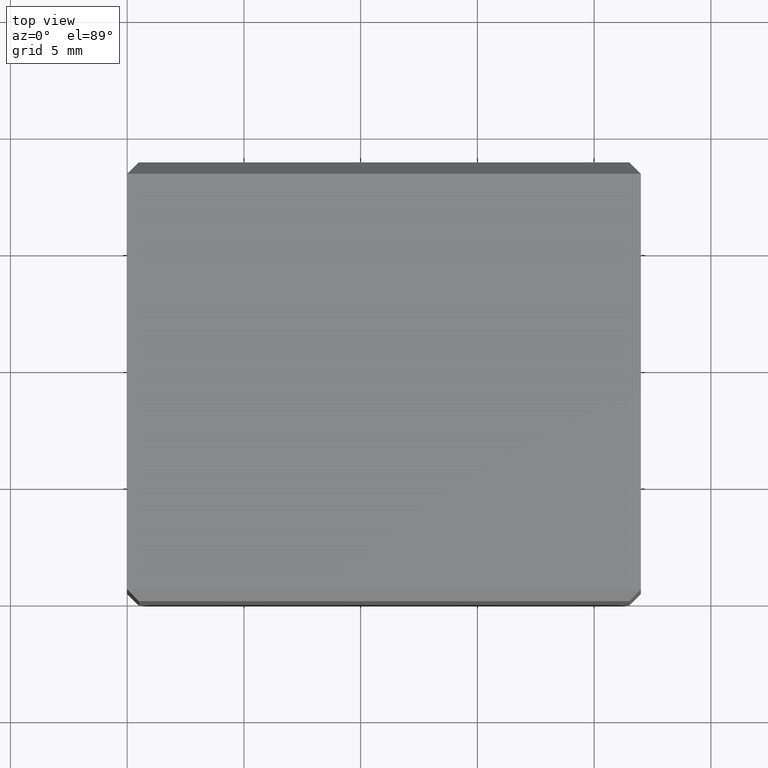
[diagram: clean part render]
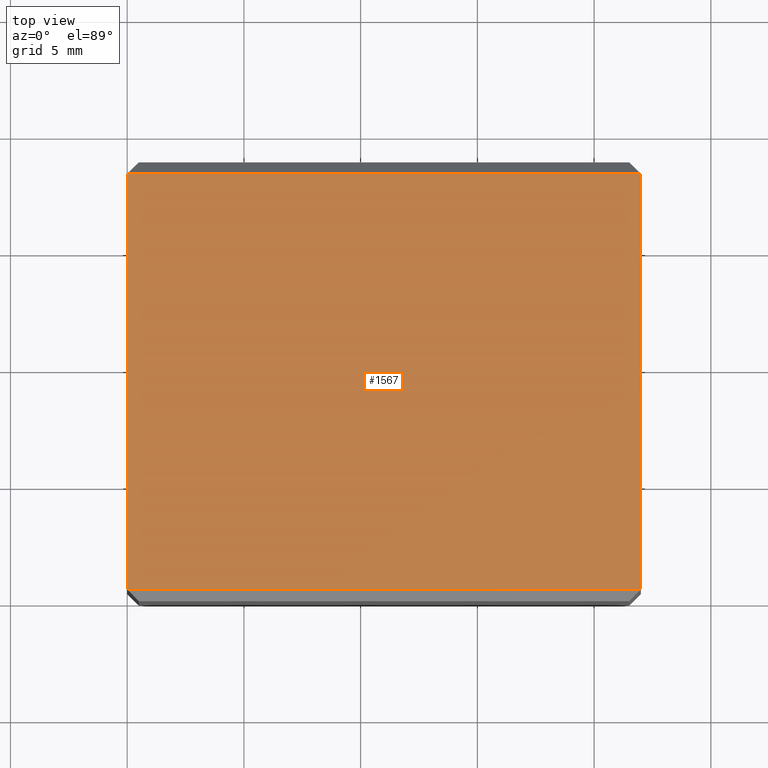
[diagram: same view with one face highlighted and labeled with its STEP entity id]
A machine part, top view. The second image highlights one B-rep face of the part: STEP entity #1567.
In plain terms, the highlighted planar face has unit normal (0, 0, -1).
Its self-contained STEP definition (entity closure, byte-faithful):
#3 = CARTESIAN_POINT ( 'NONE',  ( 22.00000000000001100, 18.29999999999999700, 8.330912090296683400E-015 ) ) ;
#9 = CARTESIAN_POINT ( 'NONE',  ( 22.00000000000000700, 0.5000000000000028900, -2.439454888092444600E-016 ) ) ;
#52 = CARTESIAN_POINT ( 'NONE',  ( -4.167402100491157700E-016, 18.29999999999999700, 7.460666199415877400E-015 ) ) ;
#231 = EDGE_LOOP ( 'NONE', ( #697, #774, #767, #808 ) ) ;
#303 = VERTEX_POINT ( 'NONE', #813 ) ;
#332 = VERTEX_POINT ( 'NONE', #52 ) ;
#348 = VERTEX_POINT ( 'NONE', #3 ) ;
#349 = VERTEX_POINT ( 'NONE', #9 ) ;
#697 = ORIENTED_EDGE ( 'NONE', *, *, #1417, .F. ) ;
#767 = ORIENTED_EDGE ( 'NONE', *, *, #1397, .F. ) ;
#774 = ORIENTED_EDGE ( 'NONE', *, *, #1442, .F. ) ;
#808 = ORIENTED_EDGE ( 'NONE', *, *, #1431, .F. ) ;
#813 = CARTESIAN_POINT ( 'NONE',  ( -1.253608761936378300E-016, 0.5000000000000005600, 2.600391148070713900E-016 ) ) ;
#883 = VECTOR ( 'NONE', #2163, 1000.000000000000000 ) ;
#892 = VECTOR ( 'NONE', #2101, 1000.000000000000000 ) ;
#906 = VECTOR ( 'NONE', #2044, 1000.000000000000000 ) ;
#947 = VECTOR ( 'NONE', #2210, 1000.000000000000000 ) ;
#1063 = AXIS2_PLACEMENT_3D ( 'NONE', #1649, #1641, #1672 ) ;
#1397 = EDGE_CURVE ( 'NONE', #349, #303, #2055, .T. ) ;
#1417 = EDGE_CURVE ( 'NONE', #332, #348, #2121, .T. ) ;
#1431 = EDGE_CURVE ( 'NONE', #348, #349, #2138, .T. ) ;
#1442 = EDGE_CURVE ( 'NONE', #303, #332, #2195, .T. ) ;
#1567 = ADVANCED_FACE ( 'NONE', ( #1671 ), #1667, .F. ) ;
#1641 = DIRECTION ( 'NONE',  ( 0.0000000000000000000, 0.0000000000000000000, -1.000000000000000000 ) ) ;
#1649 = CARTESIAN_POINT ( 'NONE',  ( 0.0000000000000000000, 18.50000000000000000, 0.0000000000000000000 ) ) ;
#1667 = PLANE ( 'NONE',  #1063 ) ;
#1671 = FACE_OUTER_BOUND ( 'NONE', #231, .T. ) ;
#1672 = DIRECTION ( 'NONE',  ( -1.000000000000000000, 0.0000000000000000000, -0.0000000000000000000 ) ) ;
#2033 = CARTESIAN_POINT ( 'NONE',  ( 0.0000000000000000000, 0.5000000000000004400, 0.0000000000000000000 ) ) ;
#2044 = DIRECTION ( 'NONE',  ( -1.000000000000000000, 0.0000000000000000000, -0.0000000000000000000 ) ) ;
#2055 = LINE ( 'NONE', #2033, #906 ) ;
#2101 = DIRECTION ( 'NONE',  ( 1.000000000000000000, -0.0000000000000000000, 0.0000000000000000000 ) ) ;
#2121 = LINE ( 'NONE', #2125, #892 ) ;
#2125 = CARTESIAN_POINT ( 'NONE',  ( 0.0000000000000000000, 18.29999999999999700, 0.0000000000000000000 ) ) ;
#2138 = LINE ( 'NONE', #2161, #883 ) ;
#2161 = CARTESIAN_POINT ( 'NONE',  ( 22.00000000000001100, 18.50000000000000000, 0.0000000000000000000 ) ) ;
#2163 = DIRECTION ( 'NONE',  ( -0.0000000000000000000, -1.000000000000000000, -0.0000000000000000000 ) ) ;
#2180 = CARTESIAN_POINT ( 'NONE',  ( 2.710505431213761100E-017, 18.50000000000000000, 0.0000000000000000000 ) ) ;
#2195 = LINE ( 'NONE', #2180, #947 ) ;
#2210 = DIRECTION ( 'NONE',  ( 0.0000000000000000000, 1.000000000000000000, 0.0000000000000000000 ) ) ;